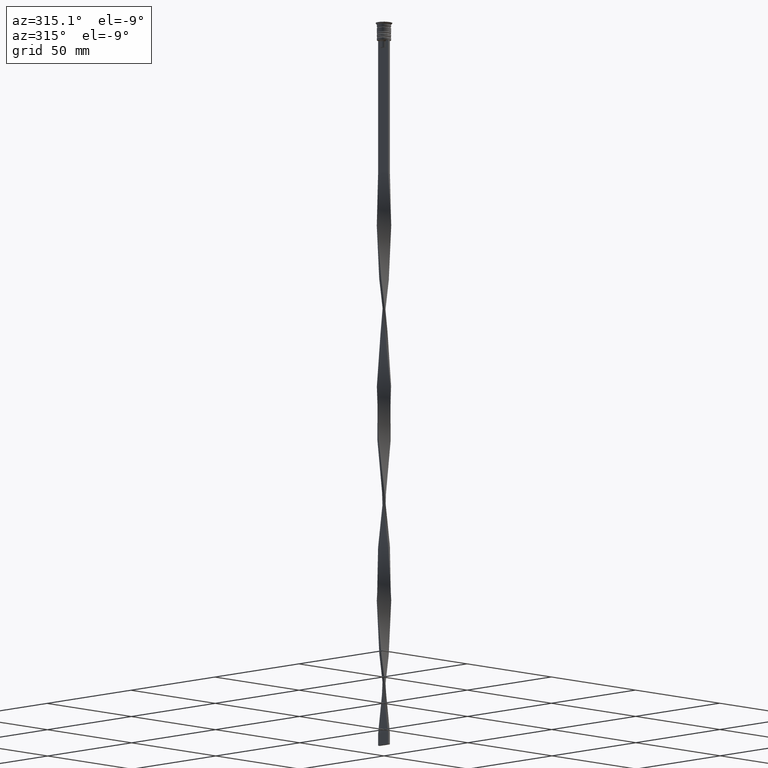
[diagram: clean part render]
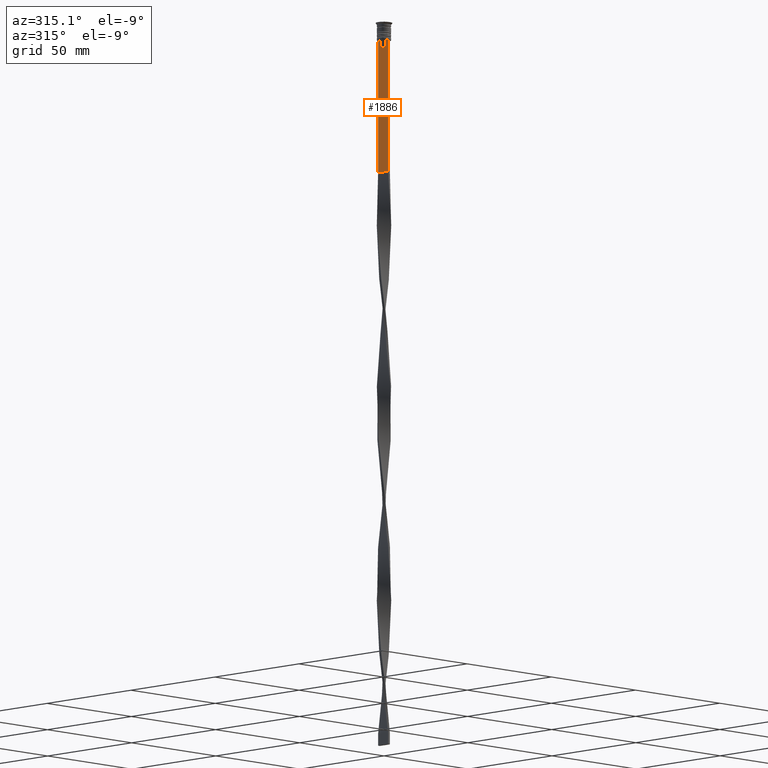
[diagram: same view with one face highlighted and labeled with its STEP entity id]
A machine part, auxiliary view. The second image highlights one B-rep face of the part: STEP entity #1886.
In plain terms, the highlighted planar face has unit normal (-1, 0, 0).
Its self-contained STEP definition (entity closure, byte-faithful):
#74 = CARTESIAN_POINT ( 'NONE',  ( -0.5000000000000001110, -1.307669683062199217, -8.000000000000000000 ) ) ;
#120 = LINE ( 'NONE', #3136, #198 ) ;
#126 = VECTOR ( 'NONE', #1715, 1000.000000000000000 ) ;
#129 = VECTOR ( 'NONE', #441, 1000.000000000000000 ) ;
#144 = DIRECTION ( 'NONE',  ( -0.000000000000000000, -0.000000000000000000, 1.000000000000000000 ) ) ;
#155 = FACE_OUTER_BOUND ( 'NONE', #1056, .T. ) ;
#163 = CARTESIAN_POINT ( 'NONE',  ( -0.5000000000000001110, -3.000000000000000000, -7.500000000000000000 ) ) ;
#198 = VECTOR ( 'NONE', #144, 1000.000000000000000 ) ;
#250 = CARTESIAN_POINT ( 'NONE',  ( -0.5000000000000001110, 1.307669683062199217, -10.49999999999999822 ) ) ;
#293 = EDGE_CURVE ( 'NONE', #1572, #3271, #3181, .T. ) ;
#299 = ORIENTED_EDGE ( 'NONE', *, *, #312, .F. ) ;
#302 = ORIENTED_EDGE ( 'NONE', *, *, #1604, .F. ) ;
#312 = EDGE_CURVE ( 'NONE', #1485, #1523, #542, .T. ) ;
#315 = VECTOR ( 'NONE', #2543, 1000.000000000000000 ) ;
#343 = VERTEX_POINT ( 'NONE', #2647 ) ;
#348 = ORIENTED_EDGE ( 'NONE', *, *, #455, .F. ) ;
#352 = VERTEX_POINT ( 'NONE', #250 ) ;
#437 = CARTESIAN_POINT ( 'NONE',  ( -0.5000000000000001110, -3.000000000000000000, -7.500000000000000000 ) ) ;
#441 = DIRECTION ( 'NONE',  ( 0.000000000000000000, 1.000000000000000000, 0.000000000000000000 ) ) ;
#443 = CARTESIAN_POINT ( 'NONE',  ( -0.5000000000000001110, 1.833030277982335532, -7.500000000000000000 ) ) ;
#455 = EDGE_CURVE ( 'NONE', #1270, #1572, #2981, .T. ) ;
#465 = CARTESIAN_POINT ( 'NONE',  ( -0.5000000000000001110, 1.484355510416485391, -7.834966642958598015 ) ) ;
#507 = AXIS2_PLACEMENT_3D ( 'NONE', #1693, #2906, #1095 ) ;
#523 = ORIENTED_EDGE ( 'NONE', *, *, #2053, .F. ) ;
#542 = LINE ( 'NONE', #3878, #1217 ) ;
#543 = CARTESIAN_POINT ( 'NONE',  ( -0.5000000000000001110, -1.659011726860414093, -7.667884880598472286 ) ) ;
#662 = CARTESIAN_POINT ( 'NONE',  ( -0.5000000000000001110, -3.000000000000000000, -7.500000000000000000 ) ) ;
#781 = EDGE_CURVE ( 'NONE', #890, #1270, #1602, .T. ) ;
#793 = CARTESIAN_POINT ( 'NONE',  ( -0.5000000000000001110, 1.659046061654642523, -7.667851756010361619 ) ) ;
#824 = CARTESIAN_POINT ( 'NONE',  ( -0.5000000000000001110, -3.000000000000000000, -1.417237469701779329 ) ) ;
#849 = CARTESIAN_POINT ( 'NONE',  ( -0.5000000000000001110, -1.484307477388859153, -7.835011508197190722 ) ) ;
#890 = VERTEX_POINT ( 'NONE', #2562 ) ;
#1022 = VECTOR ( 'NONE', #3046, 1000.000000000000000 ) ;
#1056 = EDGE_LOOP ( 'NONE', ( #3438, #3118, #299, #1188, #2283, #348, #1949, #3420, #302, #2180, #1233, #523 ) ) ;
#1075 = PLANE ( 'NONE',  #507 ) ;
#1095 = DIRECTION ( 'NONE',  ( 0.000000000000000000, 0.000000000000000000, 1.000000000000000000 ) ) ;
#1129 = CARTESIAN_POINT ( 'NONE',  ( -0.5000000000000001110, -1.833030277982335532, -7.500000000000000000 ) ) ;
#1148 = CARTESIAN_POINT ( 'NONE',  ( -0.5000000000000001110, 1.307669683062199217, 0.000000000000000000 ) ) ;
#1188 = ORIENTED_EDGE ( 'NONE', *, *, #1297, .T. ) ;
#1217 = VECTOR ( 'NONE', #1730, 1000.000000000000000 ) ;
#1233 = ORIENTED_EDGE ( 'NONE', *, *, #2875, .F. ) ;
#1270 = VERTEX_POINT ( 'NONE', #1393 ) ;
#1297 = EDGE_CURVE ( 'NONE', #1485, #3271, #3812, .T. ) ;
#1393 = CARTESIAN_POINT ( 'NONE',  ( -0.5000000000000001110, -3.000000000000000000, -7.500000000000000000 ) ) ;
#1425 = DIRECTION ( 'NONE',  ( 0.000000000000000000, -1.000000000000000000, 0.000000000000000000 ) ) ;
#1457 = EDGE_CURVE ( 'NONE', #1523, #343, #2208, .T. ) ;
#1485 = VERTEX_POINT ( 'NONE', #3415 ) ;
#1501 = DIRECTION ( 'NONE',  ( 0.000000000000000000, -1.000000000000000000, 0.000000000000000000 ) ) ;
#1514 = EDGE_CURVE ( 'NONE', #3951, #890, #2896, .T. ) ;
#1521 = CARTESIAN_POINT ( 'NONE',  ( -0.5000000000000001110, -1.307669683062199217, -10.49999999999999822 ) ) ;
#1523 = VERTEX_POINT ( 'NONE', #2076 ) ;
#1572 = VERTEX_POINT ( 'NONE', #2965 ) ;
#1602 = LINE ( 'NONE', #662, #2240 ) ;
#1604 = EDGE_CURVE ( 'NONE', #3377, #3951, #1640, .T. ) ;
#1640 = B_SPLINE_CURVE_WITH_KNOTS ( 'NONE', 3,
 ( #2368, #849, #543, #1129 ),
 .UNSPECIFIED., .F., .F.,
 ( 4, 4 ),
 ( 0.007225659348748070081, 0.007950554640278040958 ),
 .UNSPECIFIED. ) ;
#1693 = CARTESIAN_POINT ( 'NONE',  ( -0.5000000000000001110, -3.000000000000000000, -1.417237469701779329 ) ) ;
#1715 = DIRECTION ( 'NONE',  ( 0.000000000000000000, 0.000000000000000000, -1.000000000000000000 ) ) ;
#1730 = DIRECTION ( 'NONE',  ( 0.000000000000000000, -1.000000000000000000, 0.000000000000000000 ) ) ;
#1830 = LINE ( 'NONE', #1148, #1022 ) ;
#1882 = EDGE_CURVE ( 'NONE', #343, #3341, #3735, .T. ) ;
#1886 = ADVANCED_FACE ( 'NONE', ( #155 ), #1075, .T. ) ;
#1911 = CARTESIAN_POINT ( 'NONE',  ( -0.5000000000000001110, -3.000000000000000000, -63.50000000000000000 ) ) ;
#1929 = DIRECTION ( 'NONE',  ( 0.000000000000000000, -1.000000000000000000, 0.000000000000000000 ) ) ;
#1949 = ORIENTED_EDGE ( 'NONE', *, *, #781, .F. ) ;
#2053 = EDGE_CURVE ( 'NONE', #3341, #352, #1830, .T. ) ;
#2064 = CARTESIAN_POINT ( 'NONE',  ( -0.5000000000000001110, 1.399999999999997691, -10.49999999999999822 ) ) ;
#2076 = CARTESIAN_POINT ( 'NONE',  ( -0.5000000000000001110, 2.856571371417139904, -7.500000000000000000 ) ) ;
#2180 = ORIENTED_EDGE ( 'NONE', *, *, #2195, .F. ) ;
#2195 = EDGE_CURVE ( 'NONE', #3670, #3377, #120, .T. ) ;
#2208 = LINE ( 'NONE', #437, #3886 ) ;
#2216 = CARTESIAN_POINT ( 'NONE',  ( -0.5000000000000001110, -1.833030277982335532, -7.500000000000000000 ) ) ;
#2240 = VECTOR ( 'NONE', #1929, 1000.000000000000000 ) ;
#2283 = ORIENTED_EDGE ( 'NONE', *, *, #293, .F. ) ;
#2344 = DIRECTION ( 'NONE',  ( 0.000000000000000000, 0.000000000000000000, -1.000000000000000000 ) ) ;
#2368 = CARTESIAN_POINT ( 'NONE',  ( -0.5000000000000001110, -1.307669683062199217, -8.000000000000000000 ) ) ;
#2543 = DIRECTION ( 'NONE',  ( 0.000000000000000000, -1.000000000000000000, 0.000000000000000000 ) ) ;
#2562 = CARTESIAN_POINT ( 'NONE',  ( -0.5000000000000001110, -2.856571371417139904, -7.500000000000000000 ) ) ;
#2647 = CARTESIAN_POINT ( 'NONE',  ( -0.5000000000000001110, 1.833030277982335532, -7.500000000000000000 ) ) ;
#2706 = CARTESIAN_POINT ( 'NONE',  ( -0.5000000000000001110, 3.000000000000000000, -1.417237469701779329 ) ) ;
#2875 = EDGE_CURVE ( 'NONE', #352, #3670, #3354, .T. ) ;
#2888 = CARTESIAN_POINT ( 'NONE',  ( -0.5000000000000001110, 1.307669683062199217, -8.000000000000000000 ) ) ;
#2896 = LINE ( 'NONE', #163, #315 ) ;
#2906 = DIRECTION ( 'NONE',  ( -1.000000000000000000, 0.000000000000000000, 0.000000000000000000 ) ) ;
#2965 = CARTESIAN_POINT ( 'NONE',  ( -0.5000000000000001110, -3.000000000000000000, -63.50000000000000000 ) ) ;
#2969 = CARTESIAN_POINT ( 'NONE',  ( -0.5000000000000001110, 3.000000000000000000, -63.50000000000000000 ) ) ;
#2981 = LINE ( 'NONE', #824, #3639 ) ;
#3046 = DIRECTION ( 'NONE',  ( 0.000000000000000000, 0.000000000000000000, -1.000000000000000000 ) ) ;
#3118 = ORIENTED_EDGE ( 'NONE', *, *, #1457, .F. ) ;
#3136 = CARTESIAN_POINT ( 'NONE',  ( -0.5000000000000001110, -1.307669683062199217, 0.000000000000000000 ) ) ;
#3181 = LINE ( 'NONE', #1911, #129 ) ;
#3271 = VERTEX_POINT ( 'NONE', #2969 ) ;
#3319 = VECTOR ( 'NONE', #1501, 1000.000000000000000 ) ;
#3341 = VERTEX_POINT ( 'NONE', #3712 ) ;
#3354 = LINE ( 'NONE', #2064, #3319 ) ;
#3377 = VERTEX_POINT ( 'NONE', #74 ) ;
#3415 = CARTESIAN_POINT ( 'NONE',  ( -0.5000000000000001110, 3.000000000000000000, -7.500000000000000000 ) ) ;
#3420 = ORIENTED_EDGE ( 'NONE', *, *, #1514, .F. ) ;
#3438 = ORIENTED_EDGE ( 'NONE', *, *, #1882, .F. ) ;
#3639 = VECTOR ( 'NONE', #2344, 1000.000000000000000 ) ;
#3670 = VERTEX_POINT ( 'NONE', #1521 ) ;
#3712 = CARTESIAN_POINT ( 'NONE',  ( -0.5000000000000001110, 1.307669683062199217, -8.000000000000000000 ) ) ;
#3735 = B_SPLINE_CURVE_WITH_KNOTS ( 'NONE', 3,
 ( #443, #793, #465, #2888 ),
 .UNSPECIFIED., .F., .F.,
 ( 4, 4 ),
 ( 0.003278537493109840491, 0.004003794023484932504 ),
 .UNSPECIFIED. ) ;
#3812 = LINE ( 'NONE', #2706, #126 ) ;
#3878 = CARTESIAN_POINT ( 'NONE',  ( -0.5000000000000001110, -3.000000000000000000, -7.500000000000000000 ) ) ;
#3886 = VECTOR ( 'NONE', #1425, 1000.000000000000000 ) ;
#3951 = VERTEX_POINT ( 'NONE', #2216 ) ;